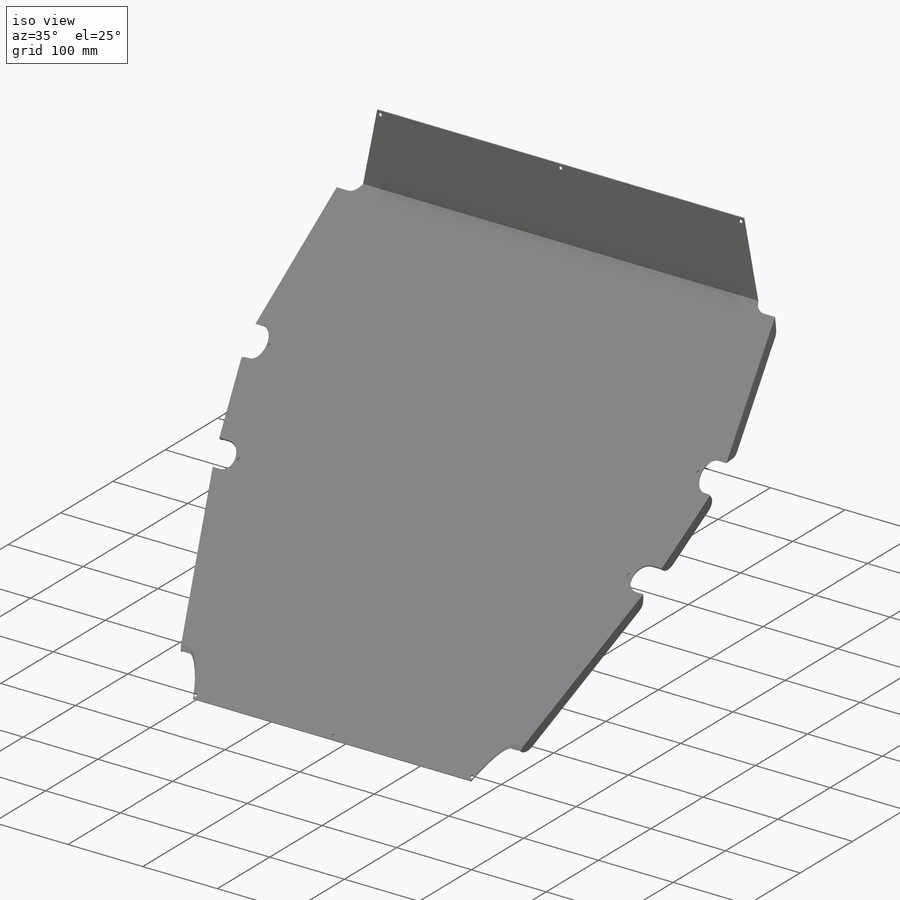
[diagram: iso view]
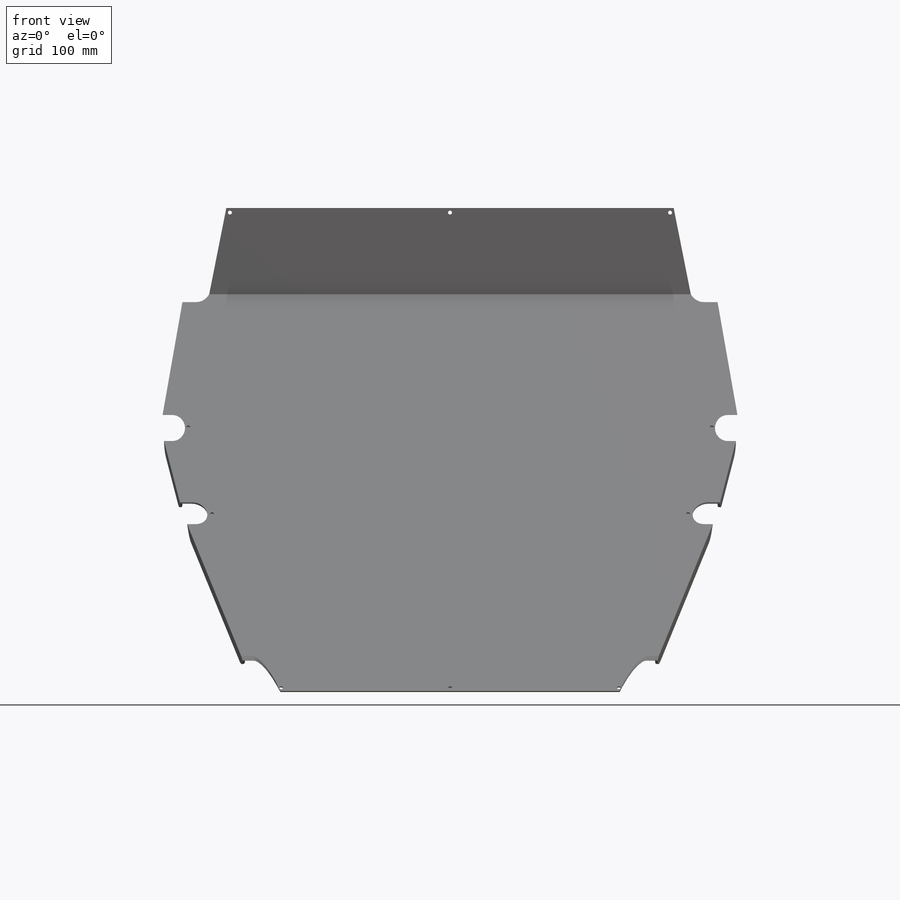
[diagram: front view]
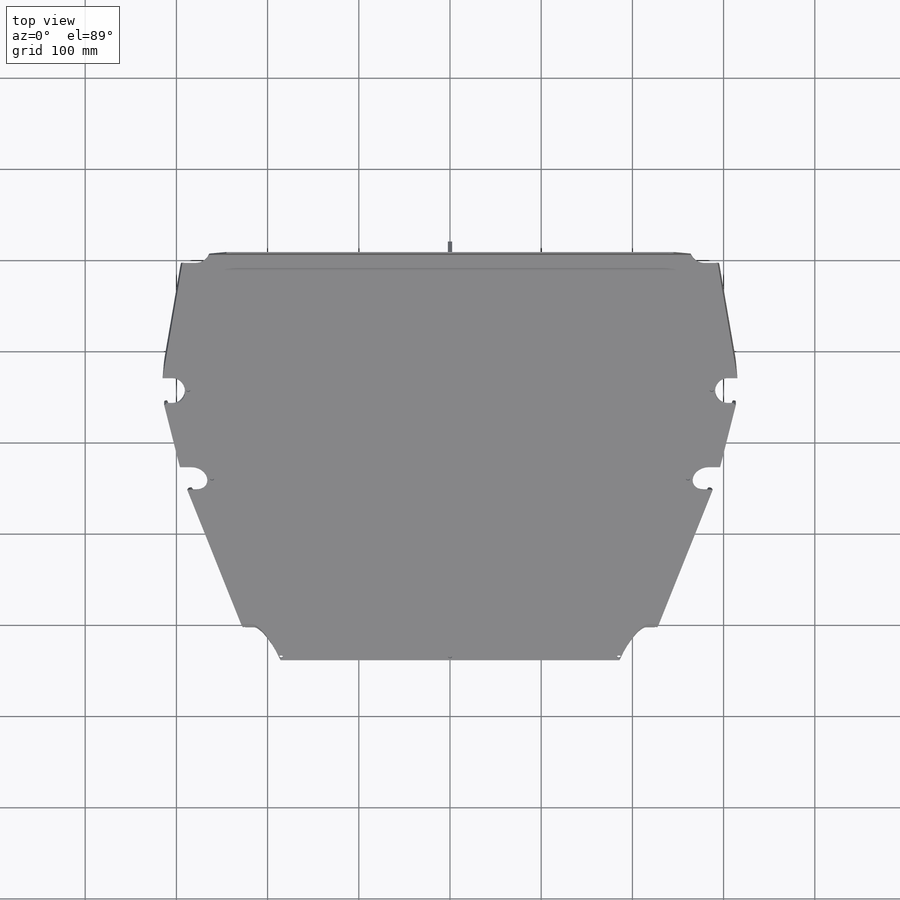
[diagram: top view]
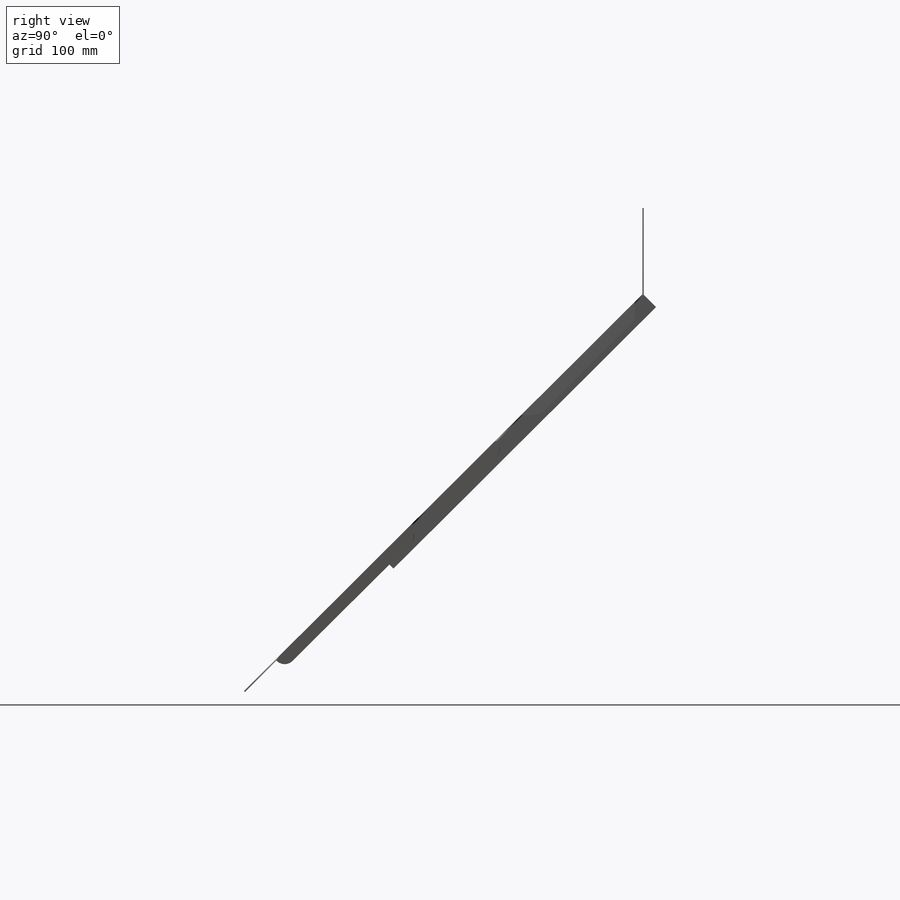
[diagram: right view]
SOLIDWORKS PART (.sldprt)
format: sldprt  version: not decoded by parser v0  size: 633,856 bytes
history: native  units: mm
features: sketch x17, plane x15, cut_extrude x12, extrude x4, mirror x2, material x1 (+14 scaffold rows collapsed; 1 parser-record rows omitted)
feature tree (66):
  scaffold x14  (default folders/planes/origin — collapsed)
  material  "6061 Alloy"
  sketch  "Sketch1"  dims[D1=536.6459mm D2=583.6357mm D3=95.25mm]
  extrude  "Upper"  Depth=1.5mm
  plane  "Seat Angle"
  sketch  "Sketch2"  dims[c1.D7=4.318mm c1.D8=4.318mm c1.D13=4.318mm c1.D1=635.0mm c1.D2=206.9858mm c1.D3=585.6865mm c1.D4=134.7833mm c1.D5=275.4878mm c1.D6=426.4332mm c2.D7=12.7mm c2.D8=25.4mm c2.D9=25.4mm c3.D8=6.58mm c3.D9=12.7mm c3.D10=16.297mm c3.D11=19.7092mm c3.D12=1.6899mm c3.D13=7.5304mm c4.D9=2.54mm]
  extrude  "Lower"  Depth=1.5mm
  extrude  "Boss-Extrude1"  [1 undecoded]
  sketch  "Sketch2<3>"  dims[D1=12.7mm]
  sketch  "Sketch3"  dims[D1=4.318mm D2=5.08mm D3=241.3mm D4=95.25mm]
  cut_extrude  "Cut-Extrude3"  Depth=25.4mm
  parser-record x1  (decoder bookkeeping rows leaked as tree rows — omitted from the tree; the rows remain in map.json)
  plane  "Plane1"
  plane  "Tube1"  Offset=1.4986mm
  plane  "FireWall Face 1"
  plane  "Plane4"
  plane  "Tube 2"  Offset=232.3338mm
  plane  "Plane6"
  plane  "Tube 3"  Offset=288.4424mm
  plane  "Plane8"
  plane  "bottom tubes"  Offset=10.0076mm
  sketch  "3DSketch2"  dims[c1.D1=196.85mm c1.D2=228.6mm c1.D3=304.8mm c1.D4=268.224mm c1.D5=304.8mm c1.D6=~244.999574mm c2.D6=~99.782613deg c3.D6=258.8514mm c3.D7=255.6256mm c3.D8=368.554mm]
  plane  "Plane10"
  plane  "Plane11"
  plane  "Plane12"
  plane  "Plane13"
  sketch  "Sketch6"  dims[D1=28.575mm D2=50.8mm]
  sketch  "Sketch7"  dims[D1=28.575mm D2=50.8mm]
  plane  "Plane14"
  sketch  "Sketch21"  dims[D1=28.575mm D2=38.1mm]
  cut_extrude  "Cut-Extrude28"  [1 undecoded]
  sketch  "Sketch8"  dims[D1=25.4mm D2=50.8mm]
  cut_extrude  "Cut-Extrude9"  [1 undecoded]
  cut_extrude  "Cut-Extrude10"  [1 undecoded]
  cut_extrude  "Cut-Extrude11"  [1 undecoded]
  sketch  "Sketch9"  dims[D1=12.7mm D2=12.7mm]
  sketch  "Sketch10"  dims[c1.D1=12.7mm c1.D2=12.7mm c2.D1=12.7mm]
  sketch  "Sketch12"  dims[D1=12.7mm D2=12.7mm]
  cut_extrude  "Cut-Extrude13"  Depth=5.08mm
  cut_extrude  "Cut-Extrude16"  Depth=2.54mm
  cut_extrude  "Cut-Extrude22"  Depth=2.54mm
  mirror  "Mirror1"
  sketch  "Sketch18"
  sketch  "Sketch19"
  sketch  "Sketch20"
  cut_extrude  "Cut-Extrude25"  Depth=5.08mm
  cut_extrude  "Cut-Extrude26"  Depth=5.08mm
  cut_extrude  "Cut-Extrude27"  Depth=5.08mm
  sketch  "Sketch23"
  cut_extrude  "Cut-Extrude29"  Depth=22.86mm
  mirror  "Mirror2"
  sketch  "Sketch24"  dims[D1=4.7625mm D2=406.4mm]
  extrude  "Boss-Extrude2"  Depth=19.05mm
decode coverage: 24 of 35 modeling features carry decoded parameters
note: ~ marks probable driven/reference dimensions
note: 5 parameter values undecoded
summary: no parameter record found for 5 features
note: suppression state not decoded; provenance and decode notes live in map.json
